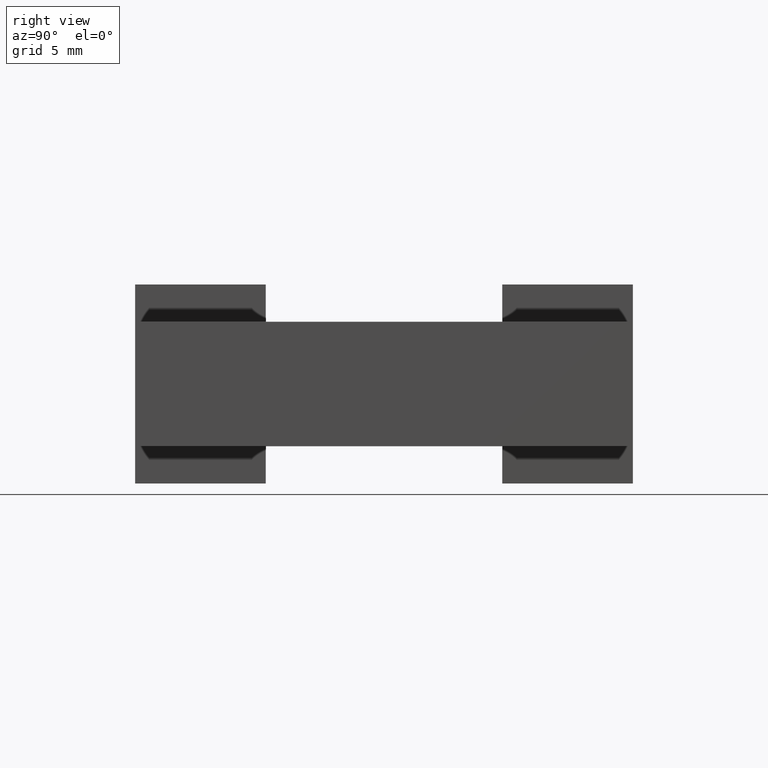
[diagram: clean part render]
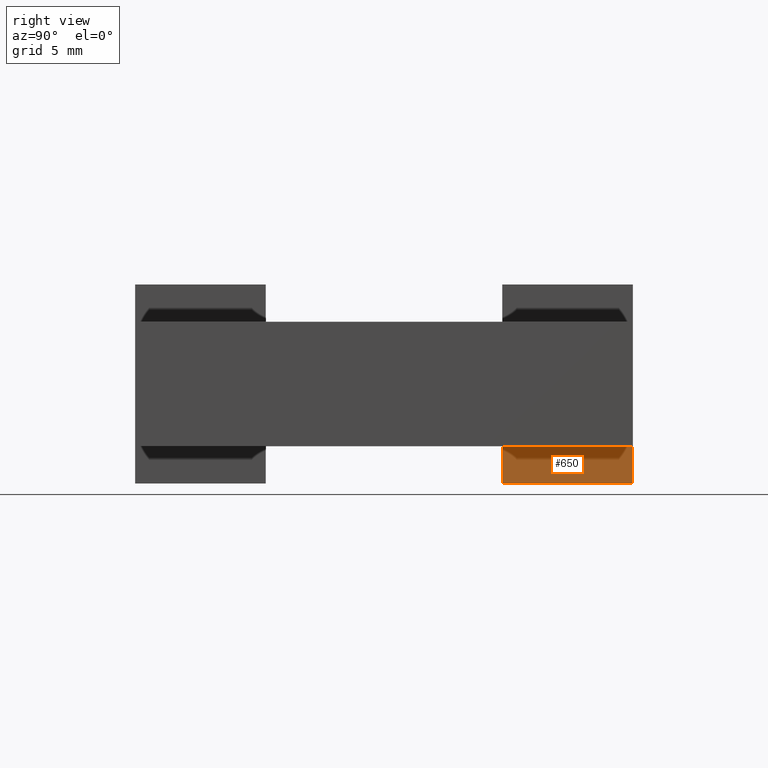
[diagram: same view with one face highlighted and labeled with its STEP entity id]
A machine part, right view. The second image highlights one B-rep face of the part: STEP entity #650.
In plain terms, the highlighted planar face has unit normal (-1, 0, 0).
Its self-contained STEP definition (entity closure, byte-faithful):
#286=CARTESIAN_POINT('',(4.0,29.500000000000000,3.0));
#287=VERTEX_POINT('',#286);
#294=CARTESIAN_POINT('',(4.0,40.0,3.0));
#295=VERTEX_POINT('',#294);
#296=CARTESIAN_POINT('',(4.0,40.0,3.0));
#297=DIRECTION('',(0.0,-1.0,0.0));
#298=VECTOR('',#297,10.499999999999993);
#299=LINE('',#296,#298);
#300=EDGE_CURVE('',#295,#287,#299,.T.);
#442=CARTESIAN_POINT('',(4.0,40.0,0.0));
#443=VERTEX_POINT('',#442);
#444=CARTESIAN_POINT('',(4.0,40.0,0.0));
#445=DIRECTION('',(0.0,0.0,1.0));
#446=VECTOR('',#445,3.0);
#447=LINE('',#444,#446);
#448=EDGE_CURVE('',#443,#295,#447,.T.);
#627=CARTESIAN_POINT('',(4.0,28.974999999999994,-0.150000000000000));
#628=DIRECTION('',(-1.0,0.0,0.0));
#629=DIRECTION('',(0.0,0.0,1.0));
#630=AXIS2_PLACEMENT_3D('',#627,#628,#629);
#631=PLANE('',#630);
#632=ORIENTED_EDGE('',*,*,#300,.T.);
#633=CARTESIAN_POINT('',(4.0,29.500000000000000,0.0));
#634=VERTEX_POINT('',#633);
#635=CARTESIAN_POINT('',(4.0,29.500000000000000,3.0));
#636=DIRECTION('',(0.0,0.0,-1.0));
#637=VECTOR('',#636,3.0);
#638=LINE('',#635,#637);
#639=EDGE_CURVE('',#287,#634,#638,.T.);
#640=ORIENTED_EDGE('',*,*,#639,.T.);
#641=CARTESIAN_POINT('',(4.0,40.0,0.0));
#642=DIRECTION('',(0.0,-1.0,0.0));
#643=VECTOR('',#642,10.499999999999993);
#644=LINE('',#641,#643);
#645=EDGE_CURVE('',#443,#634,#644,.T.);
#646=ORIENTED_EDGE('',*,*,#645,.F.);
#647=ORIENTED_EDGE('',*,*,#448,.T.);
#648=EDGE_LOOP('',(#632,#640,#646,#647));
#649=FACE_OUTER_BOUND('',#648,.T.);
#650=ADVANCED_FACE('',(#649),#631,.F.);